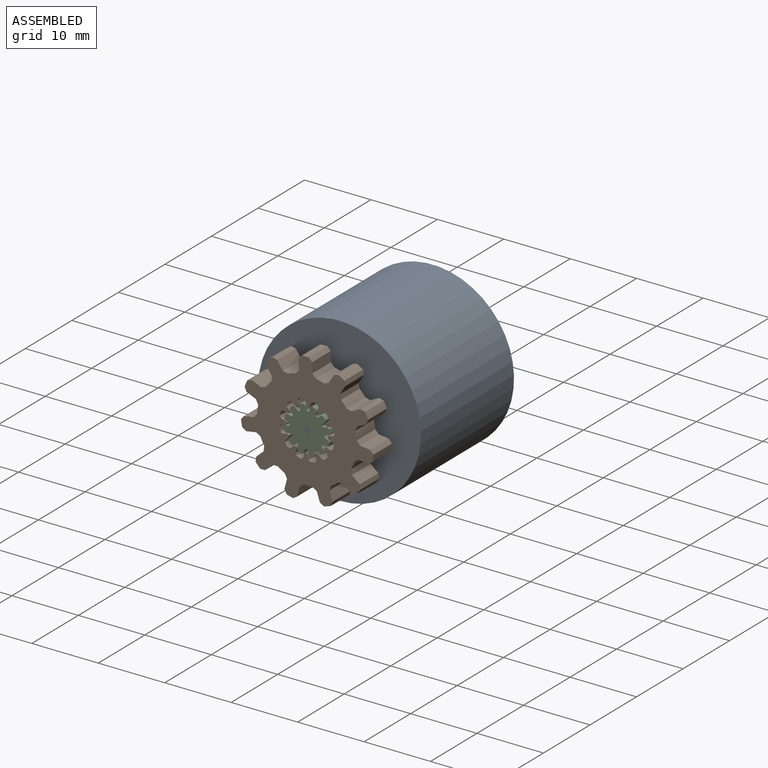
[diagram: assembled view]
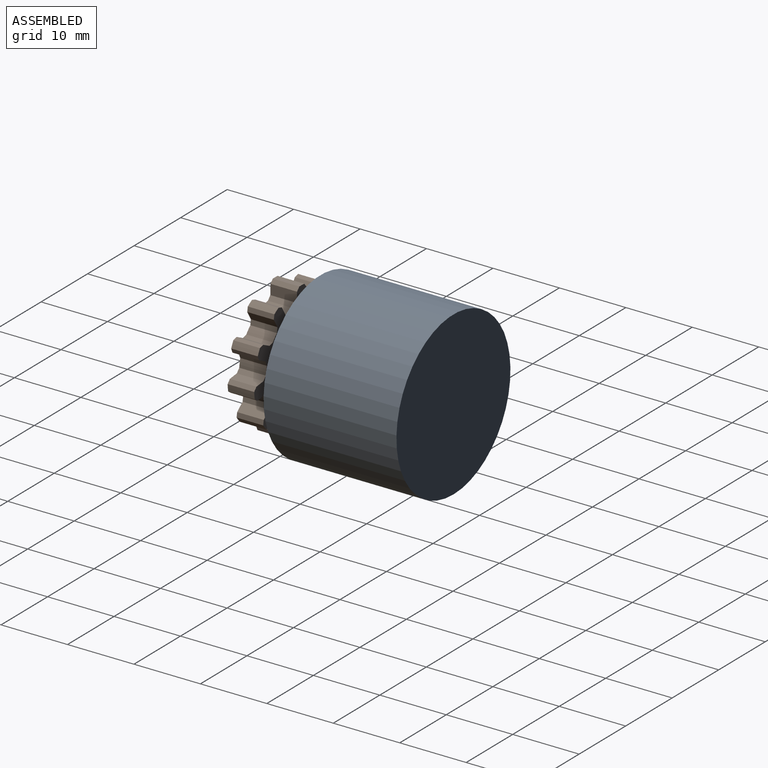
[diagram: assembled view, second angle]
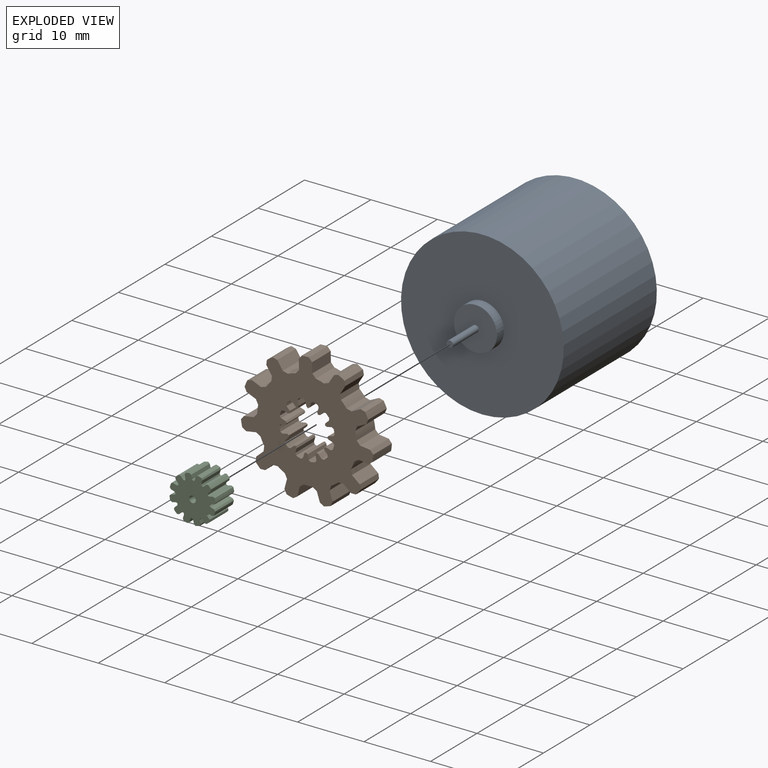
[diagram: exploded view]
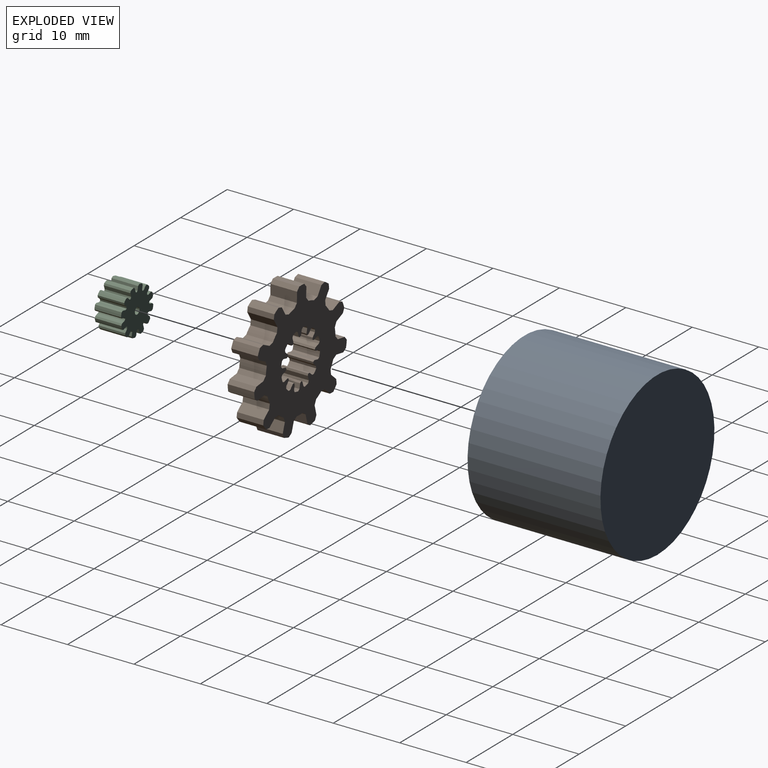
[diagram: exploded view, second angle]
ASSEMBLY  parts=3 mates=2
PART A: 7 faces, bbox 24.5x27x24.5 mm
  f0: cylinder r=12.25mm len=24.5mm, axis (0,-1,0), area 1539.4mm2, adj f1,f2
  f1: plane 24.5x24.5mm, normal (0,1,0), area 471.4mm2, adj f0
  f2: plane 24.5x24.5mm, normal (0,-1,0), area 438.3mm2, adj f0,f3
  f3: cylinder r=3.25mm len=6.5mm, axis (0,1,0), area 30.6mm2, adj f2,f4
  f4: plane 6.5x6.5mm, normal (0,-1,0), area 32.4mm2, adj f3,f5
  f5: cylinder r=0.5mm len=5.5mm, axis (0,1,0), area 17.3mm2, adj f4,f6
  f6: plane 1x1mm, normal (0,-1,0), area 0.8mm2, adj f5
PART B: 197 faces, bbox 19.9x4x19.7 mm
  f0: plane 19.92x19.73mm, normal (0,1,0), area 186.3mm2, adj f1,f2,f3,f4,f5,f6,f7,f8
  f1: cylinder r=7.5mm len=4mm, axis (0,1,0), area 5.1mm2, adj f0,f12,f86,f95
  f2: cylinder r=7.5mm len=4mm, axis (0,1,0), area 5.1mm2, adj f0,f12,f78,f87
  f3: cylinder r=7.5mm len=4mm, axis (0,1,0), area 5.1mm2, adj f0,f12,f70,f79
  f4: cylinder r=7.5mm len=4mm, axis (0,1,0), area 5.1mm2, adj f0,f12,f62,f71
  f5: cylinder r=7.5mm len=4mm, axis (0,1,0), area 5.1mm2, adj f0,f12,f54,f63
  f6: cylinder r=7.5mm len=4mm, axis (0,1,0), area 5.1mm2, adj f0,f12,f46,f55
  f7: cylinder r=7.5mm len=4mm, axis (0,1,0), area 5.1mm2, adj f0,f12,f38,f47
  f8: cylinder r=7.5mm len=4mm, axis (0,1,0), area 5.1mm2, adj f0,f12,f30,f39
  f9: cylinder r=7.5mm len=4mm, axis (0,1,0), area 5.1mm2, adj f0,f12,f22,f31
  f10: cylinder r=7.5mm len=4mm, axis (0,1,0), area 5.1mm2, adj f0,f12,f14,f23
  f11: cylinder r=7.5mm len=4mm, axis (0,1,0), area 5.1mm2, adj f0,f12,f15,f94
  f12: plane 19.92x19.73mm, normal (0,-1,0), area 186.3mm2, adj f1,f2,f3,f4,f5,f6,f7,f8
  f13: plane 4x1.51mm, normal (-1,0,0), area 6mm2, adj f0,f12,f14,f20
  f14: plane 4x0.59mm, normal (-0.76,0,0.65), area 3.1mm2, adj f0,f10,f12,f13
  f15: plane 4x0.59mm, normal (0.76,0,0.65), area 3.1mm2, adj f0,f11,f12,f16
  f16: plane 4x1.51mm, normal (1,0,0), area 6mm2, adj f0,f12,f15,f17
  f17: plane 4x0.54mm, normal (0.75,0,0.66), area 2.9mm2, adj f0,f12,f16,f18
  f18: plane 4x0.53mm, normal (0.03,0,1), area 2.1mm2, adj f0,f12,f17,f19
  f19: plane 4x0.53mm, normal (-0.03,0,1), area 2.1mm2, adj f0,f12,f18,f20
  f20: plane 4x0.54mm, normal (-0.75,0,0.66), area 2.9mm2, adj f0,f12,f13,f19
  f21: plane 4x1.27mm, normal (-0.84,0,-0.54), area 6mm2, adj f0,f12,f22,f28
  f22: plane 4x0.76mm, normal (-0.99,0,0.13), area 3.1mm2, adj f0,f9,f12,f21
  f23: plane 4x0.74mm, normal (0.29,0,0.96), area 3.1mm2, adj f0,f10,f12,f24
  f24: plane 4x1.27mm, normal (0.84,0,0.54), area 6mm2, adj f0,f12,f23,f25
  f25: plane 4x0.69mm, normal (0.28,0,0.96), area 2.9mm2, adj f0,f12,f24,f26
  f26: plane 4x0.45mm, normal (-0.52,0,0.86), area 2.1mm2, adj f0,f12,f25,f27
  f27: plane 4x0.44mm, normal (-0.56,0,0.83), area 2.1mm2, adj f0,f12,f26,f28
  f28: plane 4x0.71mm, normal (-0.99,0,0.15), area 2.9mm2, adj f0,f12,f21,f27
  f29: plane 4x1.37mm, normal (-0.42,0,-0.91), area 6mm2, adj f0,f12,f30,f36
  f30: plane 4x0.7mm, normal (-0.9,0,-0.43), area 3.1mm2, adj f0,f8,f12,f29
  f31: plane 4x0.74mm, normal (-0.27,0,0.96), area 3.1mm2, adj f0,f9,f12,f32
  f32: plane 4x1.37mm, normal (0.42,0,0.91), area 6mm2, adj f0,f12,f31,f33
  f33: plane 4x0.69mm, normal (-0.29,0,0.96), area 2.9mm2, adj f0,f12,f32,f34
  f34: plane 4x0.47mm, normal (-0.9,0,0.44), area 2.1mm2, adj f0,f12,f33,f35
  f35: plane 4x0.49mm, normal (-0.92,0,0.39), area 2.1mm2, adj f0,f12,f34,f36
  f36: plane 4x0.65mm, normal (-0.91,0,-0.41), area 2.9mm2, adj f0,f12,f29,f35
  f37: plane 4x1.49mm, normal (0.14,0,-0.99), area 6mm2, adj f0,f12,f38,f44
  f38: plane 4x0.65mm, normal (-0.53,0,-0.85), area 3.1mm2, adj f0,f7,f12,f37
  f39: plane 4x0.58mm, normal (-0.75,0,0.66), area 3.1mm2, adj f0,f8,f12,f40
  f40: plane 4x1.49mm, normal (-0.14,0,0.99), area 6mm2, adj f0,f12,f39,f41
  f41: plane 4x0.54mm, normal (-0.76,0,0.65), area 2.9mm2, adj f0,f12,f40,f42
  f42: plane 4x0.52mm, normal (-0.99,0,-0.12), area 2.1mm2, adj f0,f12,f41,f43
  f43: plane 4x0.52mm, normal (-0.99,0,-0.17), area 2.1mm2, adj f0,f12,f42,f44
  f44: plane 4x0.6mm, normal (-0.55,0,-0.84), area 2.9mm2, adj f0,f12,f37,f43
  f45: plane 4x1.14mm, normal (0.65,0,-0.76), area 6mm2, adj f0,f12,f46,f52
  f46: plane 4x0.77mm, normal (0.01,0,-1), area 3.1mm2, adj f0,f6,f12,f45
  f47: plane 4x0.76mm, normal (-0.99,0,0.15), area 3.1mm2, adj f0,f7,f12,f48
  f48: plane 4x1.14mm, normal (-0.65,0,0.76), area 6mm2, adj f0,f12,f47,f49
  f49: plane 4x0.71mm, normal (-0.99,0,0.14), area 2.9mm2, adj f0,f12,f48,f50
  f50: plane 4x0.41mm, normal (-0.77,0,-0.63), area 2.1mm2, adj f0,f12,f49,f51
  f51: plane 4x0.39mm, normal (-0.74,0,-0.67), area 2.1mm2, adj f0,f12,f50,f52
  f52: plane 4x0.72mm, normal (-0.01,0,-1), area 2.9mm2, adj f0,f12,f45,f51
  f53: plane 4x1.45mm, normal (0.96,0,-0.28), area 6mm2, adj f0,f12,f54,f60
  f54: plane 4x0.64mm, normal (0.55,0,-0.83), area 3.1mm2, adj f0,f5,f12,f53
  f55: plane 4x0.7mm, normal (-0.91,0,-0.4), area 3.1mm2, adj f0,f6,f12,f56
  f56: plane 4x1.45mm, normal (-0.96,0,0.28), area 6mm2, adj f0,f12,f55,f57
  f57: plane 4x0.65mm, normal (-0.91,0,-0.42), area 2.9mm2, adj f0,f12,f56,f58
  f58: plane 4x0.5mm, normal (-0.31,0,-0.95), area 2.1mm2, adj f0,f12,f57,f59
  f59: plane 4x0.51mm, normal (-0.26,0,-0.97), area 2.1mm2, adj f0,f12,f58,f60
  f60: plane 4x0.6mm, normal (0.54,0,-0.84), area 2.9mm2, adj f0,f12,f53,f59
  f61: plane 4x1.45mm, normal (0.96,0,0.28), area 6mm2, adj f0,f12,f62,f68
  f62: plane 4x0.7mm, normal (0.91,0,-0.4), area 3.1mm2, adj f0,f4,f12,f61
  f63: plane 4x0.64mm, normal (-0.55,0,-0.83), area 3.1mm2, adj f0,f5,f12,f64
  f64: plane 4x1.45mm, normal (-0.96,0,-0.28), area 6mm2, adj f0,f12,f63,f65
  f65: plane 4x0.6mm, normal (-0.54,0,-0.84), area 2.9mm2, adj f0,f12,f64,f66
  f66: plane 4x0.51mm, normal (0.26,0,-0.97), area 2.1mm2, adj f0,f12,f65,f67
  f67: plane 4x0.5mm, normal (0.31,0,-0.95), area 2.1mm2, adj f0,f12,f66,f68
  f68: plane 4x0.65mm, normal (0.91,0,-0.42), area 2.9mm2, adj f0,f12,f61,f67
  f69: plane 4x1.14mm, normal (0.65,0,0.76), area 6mm2, adj f0,f12,f70,f76
  f70: plane 4x0.76mm, normal (0.99,0,0.15), area 3.1mm2, adj f0,f3,f12,f69
  f71: plane 4x0.77mm, normal (-0.01,0,-1), area 3.1mm2, adj f0,f4,f12,f72
  f72: plane 4x1.14mm, normal (-0.65,0,-0.76), area 6mm2, adj f0,f12,f71,f73
  f73: plane 4x0.72mm, normal (0.01,0,-1), area 2.9mm2, adj f0,f12,f72,f74
  f74: plane 4x0.39mm, normal (0.74,0,-0.67), area 2.1mm2, adj f0,f12,f73,f75
  f75: plane 4x0.41mm, normal (0.77,0,-0.63), area 2.1mm2, adj f0,f12,f74,f76
  f76: plane 4x0.71mm, normal (0.99,0,0.14), area 2.9mm2, adj f0,f12,f69,f75
  f77: plane 4x1.49mm, normal (0.14,0,0.99), area 6mm2, adj f0,f12,f78,f84
  f78: plane 4x0.58mm, normal (0.75,0,0.66), area 3.1mm2, adj f0,f2,f12,f77
  f79: plane 4x0.65mm, normal (0.53,0,-0.85), area 3.1mm2, adj f0,f3,f12,f80
  f80: plane 4x1.49mm, normal (-0.14,0,-0.99), area 6mm2, adj f0,f12,f79,f81
  f81: plane 4x0.6mm, normal (0.55,0,-0.84), area 2.9mm2, adj f0,f12,f80,f82
  f82: plane 4x0.52mm, normal (0.99,0,-0.17), area 2.1mm2, adj f0,f12,f81,f83
  f83: plane 4x0.52mm, normal (0.99,0,-0.12), area 2.1mm2, adj f0,f12,f82,f84
  f84: plane 4x0.54mm, normal (0.76,0,0.65), area 2.9mm2, adj f0,f12,f77,f83
  f85: plane 4x1.37mm, normal (-0.42,0,0.91), area 6mm2, adj f0,f12,f86,f92
  f86: plane 4x0.74mm, normal (0.27,0,0.96), area 3.1mm2, adj f0,f1,f12,f85
  f87: plane 4x0.7mm, normal (0.9,0,-0.43), area 3.1mm2, adj f0,f2,f12,f88
  f88: plane 4x1.37mm, normal (0.42,0,-0.91), area 6mm2, adj f0,f12,f87,f89
  f89: plane 4x0.65mm, normal (0.91,0,-0.41), area 2.9mm2, adj f0,f12,f88,f90
  f90: plane 4x0.49mm, normal (0.92,0,0.39), area 2.1mm2, adj f0,f12,f89,f91
  f91: plane 4x0.47mm, normal (0.9,0,0.44), area 2.1mm2, adj f0,f12,f90,f92
  f92: plane 4x0.69mm, normal (0.29,0,0.96), area 2.9mm2, adj f0,f12,f85,f91
  f93: plane 4x1.27mm, normal (-0.84,0,0.54), area 6mm2, adj f0,f12,f94,f100
  f94: plane 4x0.74mm, normal (-0.29,0,0.96), area 3.1mm2, adj f0,f11,f12,f93
  f95: plane 4x0.76mm, normal (0.99,0,0.13), area 3.1mm2, adj f0,f1,f12,f96
  f96: plane 4x1.27mm, normal (0.84,0,-0.54), area 6mm2, adj f0,f12,f95,f97
  f97: plane 4x0.71mm, normal (0.99,0,0.15), area 2.9mm2, adj f0,f12,f96,f98
  f98: plane 4x0.44mm, normal (0.56,0,0.83), area 2.1mm2, adj f0,f12,f97,f99
  f99: plane 4x0.45mm, normal (0.52,0,0.86), area 2.1mm2, adj f0,f12,f98,f100
  f100: plane 4x0.69mm, normal (-0.28,0,0.96), area 2.9mm2, adj f0,f12,f93,f99
  f101: plane 4x0.73mm, normal (1,0,0), area 2.9mm2, adj f0,f12,f102,f108
  f102: plane 4x0.24mm, normal (0.79,0,-0.62), area 1.2mm2, adj f0,f12,f101,f111
  f103: plane 4x0.24mm, normal (-0.79,0,-0.62), area 1.2mm2, adj f0,f12,f104,f190
  f104: plane 4x0.73mm, normal (-1,0,0), area 2.9mm2, adj f0,f12,f103,f105
  f105: plane 4x0.27mm, normal (-0.78,0,-0.63), area 1.4mm2, adj f0,f12,f104,f106
  f106: plane 4x0.38mm, normal (-0.05,0,-1), area 1.5mm2, adj f0,f12,f105,f107
  f107: plane 4x0.38mm, normal (0.05,0,-1), area 1.5mm2, adj f0,f12,f106,f108
  f108: plane 4x0.27mm, normal (0.78,0,-0.63), area 1.4mm2, adj f0,f12,f101,f107
  f109: plane 4x0.63mm, normal (0.87,0,0.5), area 2.9mm2, adj f0,f12,f110,f116
  f110: plane 4x0.3mm, normal (0.99,0,-0.14), area 1.2mm2, adj f0,f12,f109,f119
  f111: plane 4x0.28mm, normal (-0.37,0,-0.93), area 1.2mm2, adj f0,f12,f102,f112
  f112: plane 4x0.63mm, normal (-0.87,0,-0.5), area 2.9mm2, adj f0,f12,f111,f113
  f113: plane 4x0.32mm, normal (-0.36,0,-0.93), area 1.4mm2, adj f0,f12,f112,f114
  f114: plane 4x0.34mm, normal (0.46,0,-0.89), area 1.5mm2, adj f0,f12,f113,f115
  f115: plane 4x0.32mm, normal (0.54,0,-0.84), area 1.5mm2, adj f0,f12,f114,f116
  f116: plane 4x0.34mm, normal (0.99,0,-0.15), area 1.4mm2, adj f0,f12,f109,f115
  f117: plane 4x0.63mm, normal (0.5,0,0.87), area 2.9mm2, adj f0,f12,f118,f124
  f118: plane 4x0.28mm, normal (0.93,0,0.37), area 1.2mm2, adj f0,f12,f117,f127
  f119: plane 4x0.3mm, normal (0.14,0,-0.99), area 1.2mm2, adj f0,f12,f110,f120
  f120: plane 4x0.63mm, normal (-0.5,0,-0.87), area 2.9mm2, adj f0,f12,f119,f121
  f121: plane 4x0.34mm, normal (0.15,0,-0.99), area 1.4mm2, adj f0,f12,f120,f122
  f122: plane 4x0.32mm, normal (0.84,0,-0.54), area 1.5mm2, adj f0,f12,f121,f123
  f123: plane 4x0.34mm, normal (0.89,0,-0.46), area 1.5mm2, adj f0,f12,f122,f124
  f124: plane 4x0.32mm, normal (0.93,0,0.36), area 1.4mm2, adj f0,f12,f117,f123
  f125: plane 4x0.73mm, normal (0,0,1), area 2.9mm2, adj f0,f12,f126,f132
  f126: plane 4x0.24mm, normal (0.62,0,0.79), area 1.2mm2, adj f0,f12,f125,f135
  f127: plane 4x0.24mm, normal (0.62,0,-0.79), area 1.2mm2, adj f0,f12,f118,f128
  f128: plane 4x0.73mm, normal (0,0,-1), area 2.9mm2, adj f0,f12,f127,f129
  f129: plane 4x0.27mm, normal (0.63,0,-0.78), area 1.4mm2, adj f0,f12,f128,f130
  f130: plane 4x0.38mm, normal (1,0,-0.05), area 1.5mm2, adj f0,f12,f129,f131
  f131: plane 4x0.38mm, normal (1,0,0.05), area 1.5mm2, adj f0,f12,f130,f132
  f132: plane 4x0.27mm, normal (0.63,0,0.78), area 1.4mm2, adj f0,f12,f125,f131
  f133: plane 4x0.63mm, normal (-0.5,0,0.87), area 2.9mm2, adj f0,f12,f134,f140
  f134: plane 4x0.3mm, normal (0.14,0,0.99), area 1.2mm2, adj f0,f12,f133,f143
  f135: plane 4x0.28mm, normal (0.93,0,-0.37), area 1.2mm2, adj f0,f12,f126,f136
  f136: plane 4x0.63mm, normal (0.5,0,-0.87), area 2.9mm2, adj f0,f12,f135,f137
  f137: plane 4x0.32mm, normal (0.93,0,-0.36), area 1.4mm2, adj f0,f12,f136,f138
  f138: plane 4x0.34mm, normal (0.89,0,0.46), area 1.5mm2, adj f0,f12,f137,f139
  f139: plane 4x0.32mm, normal (0.84,0,0.54), area 1.5mm2, adj f0,f12,f138,f140
  f140: plane 4x0.34mm, normal (0.15,0,0.99), area 1.4mm2, adj f0,f12,f133,f139
  f141: plane 4x0.63mm, normal (-0.87,0,0.5), area 2.9mm2, adj f0,f12,f142,f148
  f142: plane 4x0.28mm, normal (-0.37,0,0.93), area 1.2mm2, adj f0,f12,f141,f151
  f143: plane 4x0.3mm, normal (0.99,0,0.14), area 1.2mm2, adj f0,f12,f134,f144
  f144: plane 4x0.63mm, normal (0.87,0,-0.5), area 2.9mm2, adj f0,f12,f143,f145
  f145: plane 4x0.34mm, normal (0.99,0,0.15), area 1.4mm2, adj f0,f12,f144,f146
  f146: plane 4x0.32mm, normal (0.54,0,0.84), area 1.5mm2, adj f0,f12,f145,f147
  f147: plane 4x0.34mm, normal (0.46,0,0.89), area 1.5mm2, adj f0,f12,f146,f148
  f148: plane 4x0.32mm, normal (-0.36,0,0.93), area 1.4mm2, adj f0,f12,f141,f147
  f149: plane 4x0.73mm, normal (-1,0,0), area 2.9mm2, adj f0,f12,f150,f156
  f150: plane 4x0.24mm, normal (-0.79,0,0.62), area 1.2mm2, adj f0,f12,f149,f159
  f151: plane 4x0.24mm, normal (0.79,0,0.62), area 1.2mm2, adj f0,f12,f142,f152
  f152: plane 4x0.73mm, normal (1,0,0), area 2.9mm2, adj f0,f12,f151,f153
  f153: plane 4x0.27mm, normal (0.78,0,0.63), area 1.4mm2, adj f0,f12,f152,f154
  f154: plane 4x0.38mm, normal (0.05,0,1), area 1.5mm2, adj f0,f12,f153,f155
  f155: plane 4x0.38mm, normal (-0.05,0,1), area 1.5mm2, adj f0,f12,f154,f156
  f156: plane 4x0.27mm, normal (-0.78,0,0.63), area 1.4mm2, adj f0,f12,f149,f155
  f157: plane 4x0.63mm, normal (-0.87,0,-0.5), area 2.9mm2, adj f0,f12,f158,f164
  f158: plane 4x0.3mm, normal (-0.99,0,0.14), area 1.2mm2, adj f0,f12,f157,f167
  f159: plane 4x0.28mm, normal (0.37,0,0.93), area 1.2mm2, adj f0,f12,f150,f160
  f160: plane 4x0.63mm, normal (0.87,0,0.5), area 2.9mm2, adj f0,f12,f159,f161
  f161: plane 4x0.32mm, normal (0.36,0,0.93), area 1.4mm2, adj f0,f12,f160,f162
  f162: plane 4x0.34mm, normal (-0.46,0,0.89), area 1.5mm2, adj f0,f12,f161,f163
  f163: plane 4x0.32mm, normal (-0.54,0,0.84), area 1.5mm2, adj f0,f12,f162,f164
  f164: plane 4x0.34mm, normal (-0.99,0,0.15), area 1.4mm2, adj f0,f12,f157,f163
  f165: plane 4x0.63mm, normal (-0.5,0,-0.87), area 2.9mm2, adj f0,f12,f166,f172
  f166: plane 4x0.28mm, normal (-0.93,0,-0.37), area 1.2mm2, adj f0,f12,f165,f175
  f167: plane 4x0.3mm, normal (-0.14,0,0.99), area 1.2mm2, adj f0,f12,f158,f168
  f168: plane 4x0.63mm, normal (0.5,0,0.87), area 2.9mm2, adj f0,f12,f167,f169
  f169: plane 4x0.34mm, normal (-0.15,0,0.99), area 1.4mm2, adj f0,f12,f168,f170
  f170: plane 4x0.32mm, normal (-0.84,0,0.54), area 1.5mm2, adj f0,f12,f169,f171
  f171: plane 4x0.34mm, normal (-0.89,0,0.46), area 1.5mm2, adj f0,f12,f170,f172
  f172: plane 4x0.32mm, normal (-0.93,0,-0.36), area 1.4mm2, adj f0,f12,f165,f171
  f173: plane 4x0.73mm, normal (0,0,-1), area 2.9mm2, adj f0,f12,f174,f180
  f174: plane 4x0.24mm, normal (-0.62,0,-0.79), area 1.2mm2, adj f0,f12,f173,f183
  f175: plane 4x0.24mm, normal (-0.62,0,0.79), area 1.2mm2, adj f0,f12,f166,f176
  f176: plane 4x0.73mm, normal (0,0,1), area 2.9mm2, adj f0,f12,f175,f177
  f177: plane 4x0.27mm, normal (-0.63,0,0.78), area 1.4mm2, adj f0,f12,f176,f178
  f178: plane 4x0.38mm, normal (-1,0,0.05), area 1.5mm2, adj f0,f12,f177,f179
  f179: plane 4x0.38mm, normal (-1,0,-0.05), area 1.5mm2, adj f0,f12,f178,f180
  f180: plane 4x0.27mm, normal (-0.63,0,-0.78), area 1.4mm2, adj f0,f12,f173,f179
  f181: plane 4x0.63mm, normal (0.5,0,-0.87), area 2.9mm2, adj f0,f12,f182,f188
  f182: plane 4x0.3mm, normal (-0.14,0,-0.99), area 1.2mm2, adj f0,f12,f181,f191
  f183: plane 4x0.28mm, normal (-0.93,0,0.37), area 1.2mm2, adj f0,f12,f174,f184
  f184: plane 4x0.63mm, normal (-0.5,0,0.87), area 2.9mm2, adj f0,f12,f183,f185
  f185: plane 4x0.32mm, normal (-0.93,0,0.36), area 1.4mm2, adj f0,f12,f184,f186
  f186: plane 4x0.34mm, normal (-0.89,0,-0.46), area 1.5mm2, adj f0,f12,f185,f187
  f187: plane 4x0.32mm, normal (-0.84,0,-0.54), area 1.5mm2, adj f0,f12,f186,f188
  f188: plane 4x0.34mm, normal (-0.15,0,-0.99), area 1.4mm2, adj f0,f12,f181,f187
  f189: plane 4x0.63mm, normal (0.87,0,-0.5), area 2.9mm2, adj f0,f12,f190,f196
  f190: plane 4x0.28mm, normal (0.37,0,-0.93), area 1.2mm2, adj f0,f12,f103,f189
  f191: plane 4x0.3mm, normal (-0.99,0,-0.14), area 1.2mm2, adj f0,f12,f182,f192
  f192: plane 4x0.63mm, normal (-0.87,0,0.5), area 2.9mm2, adj f0,f12,f191,f193
  f193: plane 4x0.34mm, normal (-0.99,0,-0.15), area 1.4mm2, adj f0,f12,f192,f194
  f194: plane 4x0.32mm, normal (-0.54,0,-0.84), area 1.5mm2, adj f0,f12,f193,f195
  f195: plane 4x0.34mm, normal (-0.46,0,-0.89), area 1.5mm2, adj f0,f12,f194,f196
  f196: plane 4x0.32mm, normal (0.36,0,-0.93), area 1.4mm2, adj f0,f12,f189,f195
PART C: 99 faces, bbox 7x4x7 mm
  f0: plane 7x7mm, normal (0,-1,0), area 30.9mm2, adj f1,f2,f3,f4,f5,f6,f7,f8
  f1: plane 4x0.61mm, normal (-1,0,0), area 2.4mm2, adj f0,f2,f8,f97
  f2: plane 4x0.2mm, normal (-0.79,0,0.62), area 1mm2, adj f0,f1,f11,f97
  f3: plane 4x0.2mm, normal (0.79,0,0.62), area 1mm2, adj f0,f4,f90,f97
  f4: plane 4x0.61mm, normal (1,0,0), area 2.4mm2, adj f0,f3,f5,f97
  f5: plane 4x0.22mm, normal (0.78,0,0.63), area 1.1mm2, adj f0,f4,f6,f97
  f6: plane 4x0.32mm, normal (0.05,0,1), area 1.3mm2, adj f0,f5,f7,f97
  f7: plane 4x0.32mm, normal (-0.05,0,1), area 1.3mm2, adj f0,f6,f8,f97
  f8: plane 4x0.22mm, normal (-0.78,0,0.63), area 1.1mm2, adj f0,f1,f7,f97
  f9: plane 4x0.53mm, normal (-0.87,0,-0.5), area 2.4mm2, adj f0,f10,f16,f97
  f10: plane 4x0.25mm, normal (-0.99,0,0.14), area 1mm2, adj f0,f9,f19,f97
  f11: plane 4x0.24mm, normal (0.37,0,0.93), area 1mm2, adj f0,f2,f12,f97
  f12: plane 4x0.53mm, normal (0.87,0,0.5), area 2.4mm2, adj f0,f11,f13,f97
  f13: plane 4x0.27mm, normal (0.36,0,0.93), area 1.1mm2, adj f0,f12,f14,f97
  f14: plane 4x0.28mm, normal (-0.46,0,0.89), area 1.3mm2, adj f0,f13,f15,f97
  f15: plane 4x0.27mm, normal (-0.54,0,0.84), area 1.3mm2, adj f0,f14,f16,f97
  f16: plane 4x0.28mm, normal (-0.99,0,0.15), area 1.1mm2, adj f0,f9,f15,f97
  f17: plane 4x0.53mm, normal (-0.5,0,-0.87), area 2.4mm2, adj f0,f18,f24,f97
  f18: plane 4x0.24mm, normal (-0.93,0,-0.37), area 1mm2, adj f0,f17,f27,f97
  f19: plane 4x0.25mm, normal (-0.14,0,0.99), area 1mm2, adj f0,f10,f20,f97
  f20: plane 4x0.53mm, normal (0.5,0,0.87), area 2.4mm2, adj f0,f19,f21,f97
  f21: plane 4x0.28mm, normal (-0.15,0,0.99), area 1.1mm2, adj f0,f20,f22,f97
  f22: plane 4x0.27mm, normal (-0.84,0,0.54), area 1.3mm2, adj f0,f21,f23,f97
  f23: plane 4x0.28mm, normal (-0.89,0,0.46), area 1.3mm2, adj f0,f22,f24,f97
  f24: plane 4x0.27mm, normal (-0.93,0,-0.36), area 1.1mm2, adj f0,f17,f23,f97
  f25: plane 4x0.61mm, normal (0,0,-1), area 2.4mm2, adj f0,f26,f32,f97
  f26: plane 4x0.2mm, normal (-0.62,0,-0.79), area 1mm2, adj f0,f25,f35,f97
  f27: plane 4x0.2mm, normal (-0.62,0,0.79), area 1mm2, adj f0,f18,f28,f97
  f28: plane 4x0.61mm, normal (0,0,1), area 2.4mm2, adj f0,f27,f29,f97
  f29: plane 4x0.22mm, normal (-0.63,0,0.78), area 1.1mm2, adj f0,f28,f30,f97
  f30: plane 4x0.32mm, normal (-1,0,0.05), area 1.3mm2, adj f0,f29,f31,f97
  f31: plane 4x0.32mm, normal (-1,0,-0.05), area 1.3mm2, adj f0,f30,f32,f97
  f32: plane 4x0.22mm, normal (-0.63,0,-0.78), area 1.1mm2, adj f0,f25,f31,f97
  f33: plane 4x0.53mm, normal (0.5,0,-0.87), area 2.4mm2, adj f0,f34,f40,f97
  f34: plane 4x0.25mm, normal (-0.14,0,-0.99), area 1mm2, adj f0,f33,f43,f97
  f35: plane 4x0.24mm, normal (-0.93,0,0.37), area 1mm2, adj f0,f26,f36,f97
  f36: plane 4x0.53mm, normal (-0.5,0,0.87), area 2.4mm2, adj f0,f35,f37,f97
  f37: plane 4x0.27mm, normal (-0.93,0,0.36), area 1.1mm2, adj f0,f36,f38,f97
  f38: plane 4x0.28mm, normal (-0.89,0,-0.46), area 1.3mm2, adj f0,f37,f39,f97
  f39: plane 4x0.27mm, normal (-0.84,0,-0.54), area 1.3mm2, adj f0,f38,f40,f97
  f40: plane 4x0.28mm, normal (-0.15,0,-0.99), area 1.1mm2, adj f0,f33,f39,f97
  f41: plane 4x0.53mm, normal (0.87,0,-0.5), area 2.4mm2, adj f0,f42,f48,f97
  f42: plane 4x0.24mm, normal (0.37,0,-0.93), area 1mm2, adj f0,f41,f51,f97
  f43: plane 4x0.25mm, normal (-0.99,0,-0.14), area 1mm2, adj f0,f34,f44,f97
  f44: plane 4x0.53mm, normal (-0.87,0,0.5), area 2.4mm2, adj f0,f43,f45,f97
  f45: plane 4x0.28mm, normal (-0.99,0,-0.15), area 1.1mm2, adj f0,f44,f46,f97
  f46: plane 4x0.27mm, normal (-0.54,0,-0.84), area 1.3mm2, adj f0,f45,f47,f97
  f47: plane 4x0.28mm, normal (-0.46,0,-0.89), area 1.3mm2, adj f0,f46,f48,f97
  f48: plane 4x0.27mm, normal (0.36,0,-0.93), area 1.1mm2, adj f0,f41,f47,f97
  f49: plane 4x0.61mm, normal (1,0,0), area 2.4mm2, adj f0,f50,f56,f97
  f50: plane 4x0.2mm, normal (0.79,0,-0.62), area 1mm2, adj f0,f49,f59,f97
  f51: plane 4x0.2mm, normal (-0.79,0,-0.62), area 1mm2, adj f0,f42,f52,f97
  f52: plane 4x0.61mm, normal (-1,0,0), area 2.4mm2, adj f0,f51,f53,f97
  f53: plane 4x0.22mm, normal (-0.78,0,-0.63), area 1.1mm2, adj f0,f52,f54,f97
  f54: plane 4x0.32mm, normal (-0.05,0,-1), area 1.3mm2, adj f0,f53,f55,f97
  f55: plane 4x0.32mm, normal (0.05,0,-1), area 1.3mm2, adj f0,f54,f56,f97
  f56: plane 4x0.22mm, normal (0.78,0,-0.63), area 1.1mm2, adj f0,f49,f55,f97
  f57: plane 4x0.53mm, normal (0.87,0,0.5), area 2.4mm2, adj f0,f58,f64,f97
  f58: plane 4x0.25mm, normal (0.99,0,-0.14), area 1mm2, adj f0,f57,f67,f97
  f59: plane 4x0.24mm, normal (-0.37,0,-0.93), area 1mm2, adj f0,f50,f60,f97
  f60: plane 4x0.53mm, normal (-0.87,0,-0.5), area 2.4mm2, adj f0,f59,f61,f97
  f61: plane 4x0.27mm, normal (-0.36,0,-0.93), area 1.1mm2, adj f0,f60,f62,f97
  f62: plane 4x0.28mm, normal (0.46,0,-0.89), area 1.3mm2, adj f0,f61,f63,f97
  f63: plane 4x0.27mm, normal (0.54,0,-0.84), area 1.3mm2, adj f0,f62,f64,f97
  f64: plane 4x0.28mm, normal (0.99,0,-0.15), area 1.1mm2, adj f0,f57,f63,f97
  f65: plane 4x0.53mm, normal (0.5,0,0.87), area 2.4mm2, adj f0,f66,f72,f97
  f66: plane 4x0.24mm, normal (0.93,0,0.37), area 1mm2, adj f0,f65,f75,f97
  f67: plane 4x0.25mm, normal (0.14,0,-0.99), area 1mm2, adj f0,f58,f68,f97
  f68: plane 4x0.53mm, normal (-0.5,0,-0.87), area 2.4mm2, adj f0,f67,f69,f97
  f69: plane 4x0.28mm, normal (0.15,0,-0.99), area 1.1mm2, adj f0,f68,f70,f97
  f70: plane 4x0.27mm, normal (0.84,0,-0.54), area 1.3mm2, adj f0,f69,f71,f97
  f71: plane 4x0.28mm, normal (0.89,0,-0.46), area 1.3mm2, adj f0,f70,f72,f97
  f72: plane 4x0.27mm, normal (0.93,0,0.36), area 1.1mm2, adj f0,f65,f71,f97
  f73: plane 4x0.61mm, normal (0,0,1), area 2.4mm2, adj f0,f74,f80,f97
  f74: plane 4x0.2mm, normal (0.62,0,0.79), area 1mm2, adj f0,f73,f83,f97
  f75: plane 4x0.2mm, normal (0.62,0,-0.79), area 1mm2, adj f0,f66,f76,f97
  f76: plane 4x0.61mm, normal (0,0,-1), area 2.4mm2, adj f0,f75,f77,f97
  f77: plane 4x0.22mm, normal (0.63,0,-0.78), area 1.1mm2, adj f0,f76,f78,f97
  f78: plane 4x0.32mm, normal (1,0,-0.05), area 1.3mm2, adj f0,f77,f79,f97
  f79: plane 4x0.32mm, normal (1,0,0.05), area 1.3mm2, adj f0,f78,f80,f97
  f80: plane 4x0.22mm, normal (0.63,0,0.78), area 1.1mm2, adj f0,f73,f79,f97
  f81: plane 4x0.53mm, normal (-0.5,0,0.87), area 2.4mm2, adj f0,f82,f88,f97
  f82: plane 4x0.25mm, normal (0.14,0,0.99), area 1mm2, adj f0,f81,f91,f97
  f83: plane 4x0.24mm, normal (0.93,0,-0.37), area 1mm2, adj f0,f74,f84,f97
  f84: plane 4x0.53mm, normal (0.5,0,-0.87), area 2.4mm2, adj f0,f83,f85,f97
  f85: plane 4x0.27mm, normal (0.93,0,-0.36), area 1.1mm2, adj f0,f84,f86,f97
  f86: plane 4x0.28mm, normal (0.89,0,0.46), area 1.3mm2, adj f0,f85,f87,f97
  f87: plane 4x0.27mm, normal (0.84,0,0.54), area 1.3mm2, adj f0,f86,f88,f97
  f88: plane 4x0.28mm, normal (0.15,0,0.99), area 1.1mm2, adj f0,f81,f87,f97
  f89: plane 4x0.53mm, normal (-0.87,0,0.5), area 2.4mm2, adj f0,f90,f96,f97
  f90: plane 4x0.24mm, normal (-0.37,0,0.93), area 1mm2, adj f0,f3,f89,f97
  f91: plane 4x0.25mm, normal (0.99,0,0.14), area 1mm2, adj f0,f82,f92,f97
  f92: plane 4x0.53mm, normal (0.87,0,-0.5), area 2.4mm2, adj f0,f91,f93,f97
  f93: plane 4x0.28mm, normal (0.99,0,0.15), area 1.1mm2, adj f0,f92,f94,f97
  f94: plane 4x0.27mm, normal (0.54,0,0.84), area 1.3mm2, adj f0,f93,f95,f97
  f95: plane 4x0.28mm, normal (0.46,0,0.89), area 1.3mm2, adj f0,f94,f96,f97
  f96: plane 4x0.27mm, normal (-0.36,0,0.93), area 1.1mm2, adj f0,f89,f95,f97
  f97: plane 7x7mm, normal (0,1,0), area 30.9mm2, adj f1,f2,f3,f4,f5,f6,f7,f8
  f98: cylinder r=0.5mm len=4mm, axis (0,1,0), area 12.6mm2, adj f0,f97
PLACE A t=(-1.98,-5.31,2.69)mm fixed
PLACE B rot(axis=(0,-1,0),132.3deg) t=(-1.98,-8.31,2.69)mm
PLACE C rot(axis=(0,-1,0),42.3deg) t=(-1.98,-8.31,2.69)mm
MATE revolute C.f98 <-> B.f1  axis (0,-1,0) through (-1.98,-12.31,2.69)mm
MATE revolute A.f5 <-> C.f98  axis (0,-1,0) through (-1.98,-12.31,2.69)mm
